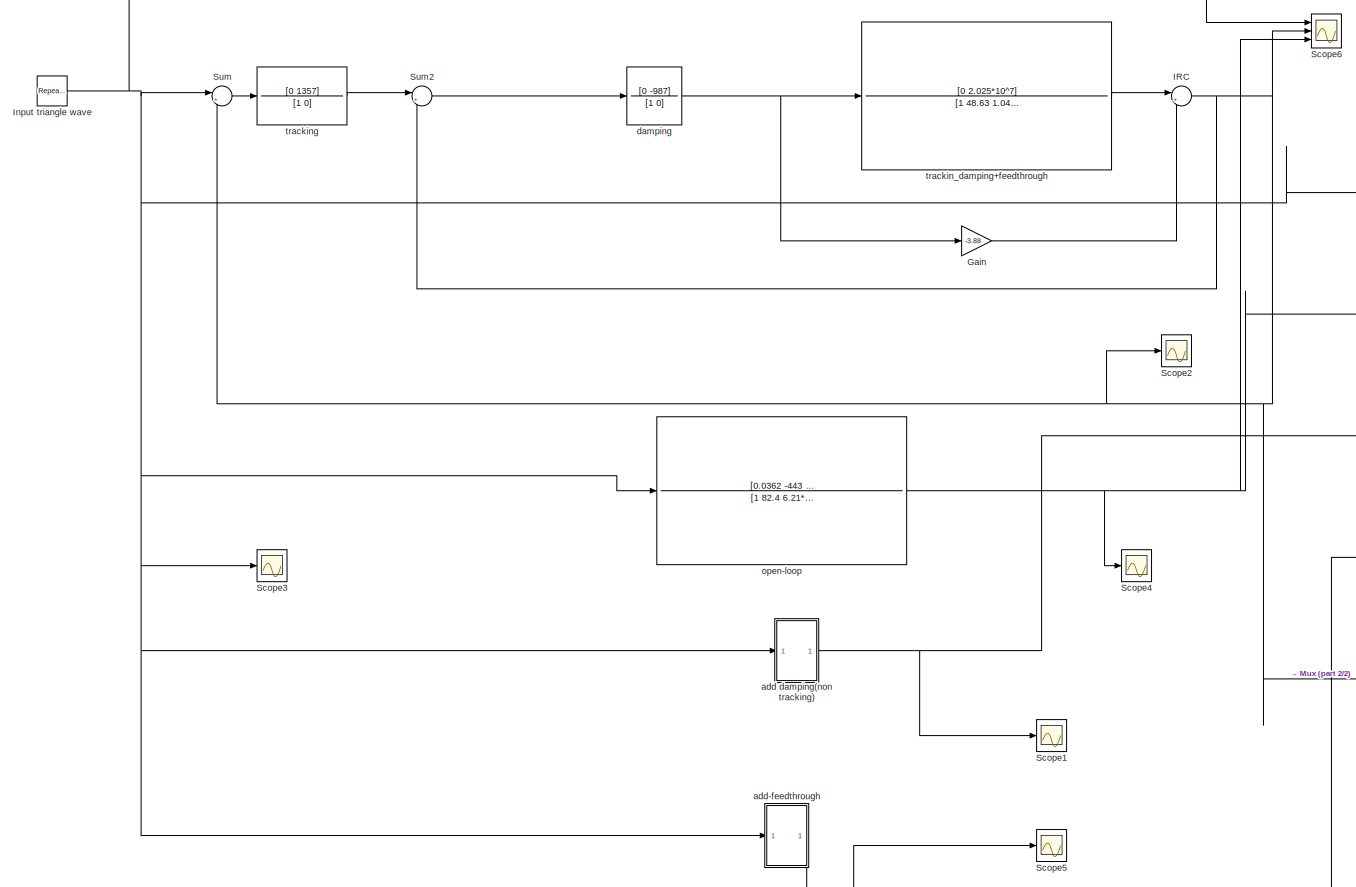
[diagram: root canvas - part 1/2, most of the canvas]
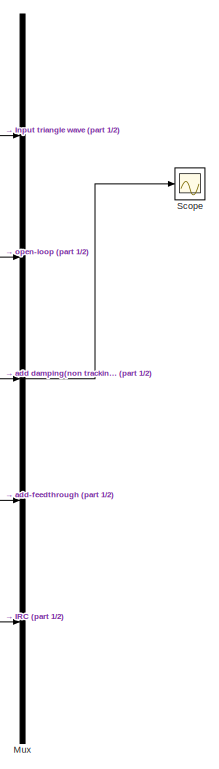
[diagram: root canvas - part 2/2, right side, full height]
MODEL slx_a6b2868882a8
KIND model
CONFIG AbsTol = auto
CONFIG EnableMultiTasking = off
CONFIG FixedStep = auto
CONFIG MaxStep = auto
CONFIG MinStep = auto
CONFIG RelTol = 1e-3
CONFIG SampleTimeConstraint = Unconstrained
CONFIG SolverName = VariableStepAuto
CONFIG StartTime = 0.0
CONFIG StopTime = 0.07
BLOCK [Gain] Gain
  Gain = -3.88
BLOCK [Sum] IRC
  Inputs = |++
  Ports = [2, 1]
BLOCK [Reference] Input triangle wave  REF=simulink/Sources/Repeating
Sequence
  Ports = [0, 1]
  SourceBlock = simulink/Sources/Repeating\nSequence
  SourceProductBaseCode = SL
  SourceType = Repeating table
BLOCK [Mux] Mux
  DisplayOption = bar
  Inputs = 5
  Ports = [5, 1]
BLOCK [Scope] Scope
  Floating = off
  NumInputPorts = 1
  Ports = [1]
  ScopeSpecificationString = Simulink.scopes.TimeScopeBlockCfg('CurrentConfiguration', extmgr.ConfigurationSet(extmgr.Configuration('Core','General UI',true),extmgr.Configuration('Core','Source UI',true),extmgr.Configuration('Sources','WiredSimulink',true),extmgr.Configuration('Visuals','Time Domain',true,'SerializedDisplays',{struct('MinYLimReal','-1.11307','MaxYLimReal','-0.17137','YLabelReal','','MinYLimMag','0.00000','Max...<+1601ch>
BLOCK [Scope] Scope1
  Floating = off
  NumInputPorts = 1
  Ports = [1]
  ScopeSpecificationString = Simulink.scopes.TimeScopeBlockCfg('CurrentConfiguration', extmgr.ConfigurationSet(extmgr.Configuration('Core','General UI',true),extmgr.Configuration('Core','Source UI',true),extmgr.Configuration('Sources','WiredSimulink',true,'DataLoggingVariableName','ScopeData1'),extmgr.Configuration('Visuals','Time Domain',true,'SerializedDisplays',{struct('MinYLimReal','-1.32058','MaxYLimReal','2.32552','YLab...<+1481ch>
BLOCK [Scope] Scope2
  Floating = off
  NumInputPorts = 1
  Ports = [1]
  ScopeSpecificationString = Simulink.scopes.TimeScopeBlockCfg('CurrentConfiguration', extmgr.ConfigurationSet(extmgr.Configuration('Core','General UI',true),extmgr.Configuration('Core','Source UI',true),extmgr.Configuration('Sources','WiredSimulink',true,'DataLoggingVariableName','ScopeData2'),extmgr.Configuration('Visuals','Time Domain',true,'SerializedDisplays',{struct('MinYLimReal','-1.32988','MaxYLimReal','2.33169','YLab...<+1424ch>
BLOCK [Scope] Scope3
  Floating = off
  NumInputPorts = 1
  Ports = [1]
  ScopeSpecificationString = Simulink.scopes.TimeScopeBlockCfg('CurrentConfiguration', extmgr.ConfigurationSet(extmgr.Configuration('Core','General UI',true),extmgr.Configuration('Core','Source UI',true),extmgr.Configuration('Sources','WiredSimulink',true,'DataLoggingVariableName','ScopeData3'),extmgr.Configuration('Visuals','Time Domain',true,'SerializedDisplays',{struct('MinYLimReal','-1.36597','MaxYLimReal','2.34191','YLab...<+1440ch>
BLOCK [Scope] Scope4
  Floating = off
  NumInputPorts = 1
  Ports = [1]
  ScopeSpecificationString = Simulink.scopes.TimeScopeBlockCfg('CurrentConfiguration', extmgr.ConfigurationSet(extmgr.Configuration('Core','General UI',true),extmgr.Configuration('Core','Source UI',true),extmgr.Configuration('Sources','WiredSimulink',true,'DataLoggingVariableName','ScopeData4'),extmgr.Configuration('Visuals','Time Domain',true,'SerializedDisplays',{struct('MinYLimReal','-1.95836','MaxYLimReal','3.37648','YLab...<+1430ch>
BLOCK [Scope] Scope5
  Floating = off
  NumInputPorts = 1
  Ports = [1]
  ScopeSpecificationString = Simulink.scopes.TimeScopeBlockCfg('CurrentConfiguration', extmgr.ConfigurationSet(extmgr.Configuration('Core','General UI',true),extmgr.Configuration('Core','Source UI',true),extmgr.Configuration('Sources','WiredSimulink',true,'DataLoggingVariableName','ScopeData5'),extmgr.Configuration('Visuals','Time Domain',true,'SerializedDisplays',{struct('MinYLimReal','-5.99934','MaxYLimReal','3.50642','YLab...<+1471ch>
BLOCK [Scope] Scope6
  Floating = off
  NumInputPorts = 3
  Ports = [3]
  ScopeSpecificationString = Simulink.scopes.TimeScopeBlockCfg('CurrentConfiguration', extmgr.ConfigurationSet(extmgr.Configuration('Core','General UI',true),extmgr.Configuration('Core','Source UI',true),extmgr.Configuration('Sources','WiredSimulink',true,'DataLoggingVariableName','ScopeData6'),extmgr.Configuration('Visuals','Time Domain',true,'SerializedDisplays',{struct('MinYLimReal','-6.12343','MaxYLimReal','3.8446','YLabe...<+1591ch>
BLOCK [Sum] Sum
  Inputs = |+-
  Ports = [2, 1]
BLOCK [Sum] Sum2
  Inputs = |+-
  Ports = [2, 1]
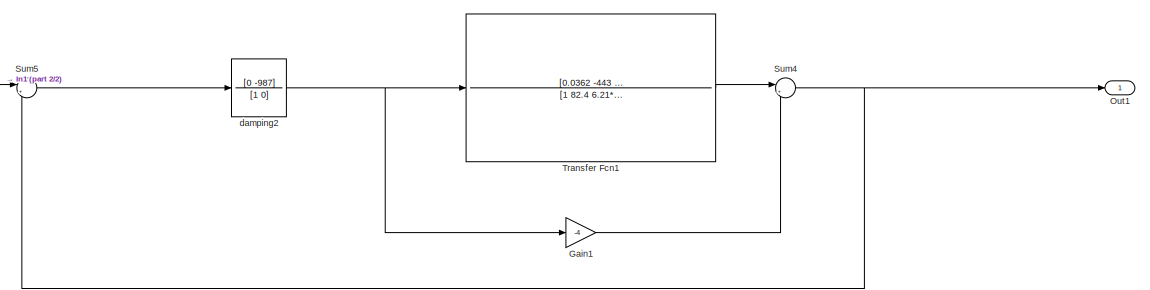
[diagram: add damping(non tracking) - part 1/2, right side, full height]
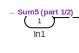
[diagram: add damping(non tracking) - part 2/2, middle left region]
BLOCK [SubSystem] add damping(non tracking)
  Ports = [1, 1]
  RequestExecContextInheritance = off
BLOCK [Gain] add damping(non tracking)/Gain1
  Gain = -4
BLOCK [Inport] add damping(non tracking)/In1
BLOCK [Outport] add damping(non tracking)/Out1
BLOCK [Sum] add damping(non tracking)/Sum4
  Inputs = |++
  Ports = [2, 1]
BLOCK [Sum] add damping(non tracking)/Sum5
  Inputs = |+-
  Ports = [2, 1]
BLOCK [TransferFcn] add damping(non tracking)/Transfer Fcn1
  Denominator = [1 82.4 6.21*10^6]
  Numerator = [0.0362 -443 8.83*10^6]
BLOCK [TransferFcn] add damping(non tracking)/damping2
  Denominator = [1 0]
  Numerator = [0 -987]
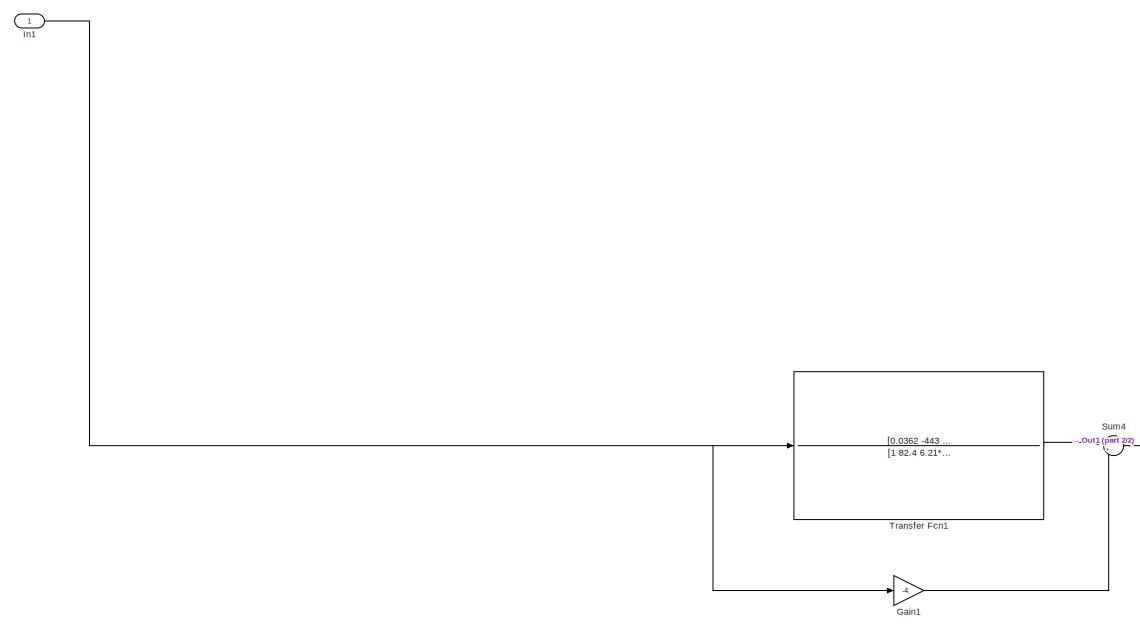
[diagram: add-feedthrough - part 1/2, center side, full height]
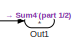
[diagram: add-feedthrough - part 2/2, middle right region]
BLOCK [SubSystem] add-feedthrough
  Ports = [1, 1]
  RequestExecContextInheritance = off
BLOCK [Gain] add-feedthrough/Gain1
  Gain = -4
BLOCK [Inport] add-feedthrough/In1
BLOCK [Outport] add-feedthrough/Out1
BLOCK [Sum] add-feedthrough/Sum4
  Inputs = |++
  Ports = [2, 1]
BLOCK [TransferFcn] add-feedthrough/Transfer Fcn1
  Denominator = [1 82.4 6.21*10^6]
  Numerator = [0.0362 -443 8.83*10^6]
BLOCK [TransferFcn] damping
  Denominator = [1 0]
  Numerator = [0 -987]
BLOCK [TransferFcn] open-loop
  Denominator = [1 82.4 6.21*10^6]
  Numerator = [0.0362 -443 8.83*10^6]
BLOCK [TransferFcn] trackin_damping+feedthrough
  Denominator = [1 48.63 1.042*10^7]
  Numerator = [0 2.025*10^7]
BLOCK [TransferFcn] tracking
  Denominator = [1 0]
  Numerator = [0 1357]
LINE Gain:1 -> IRC:2
NET IRC:1 -> Mux:5, Scope2:1, Scope6:2, Sum2:2, Sum:2
NET Input triangle wave:1 -> Mux:1, Scope3:1, Scope6:1, Sum:1, add damping(non tracking):1, add-feedthrough:1, open-loop:1
LINE Mux:1 -> Scope:1
LINE Sum2:1 -> damping:1
LINE Sum:1 -> tracking:1
LINE add damping(non tracking)/Gain1:1 -> add damping(non tracking)/Sum4:2
LINE add damping(non tracking)/In1:1 -> add damping(non tracking)/Sum5:1
NET add damping(non tracking)/Sum4:1 -> add damping(non tracking)/Out1:1, add damping(non tracking)/Sum5:2
LINE add damping(non tracking)/Sum5:1 -> add damping(non tracking)/damping2:1
LINE add damping(non tracking)/Transfer Fcn1:1 -> add damping(non tracking)/Sum4:1
NET add damping(non tracking)/damping2:1 -> add damping(non tracking)/Gain1:1, add damping(non tracking)/Transfer Fcn1:1
NET add damping(non tracking):1 -> Mux:3, Scope1:1
LINE add-feedthrough/Gain1:1 -> add-feedthrough/Sum4:2
NET add-feedthrough/In1:1 -> add-feedthrough/Gain1:1, add-feedthrough/Transfer Fcn1:1
LINE add-feedthrough/Sum4:1 -> add-feedthrough/Out1:1
LINE add-feedthrough/Transfer Fcn1:1 -> add-feedthrough/Sum4:1
NET add-feedthrough:1 -> Mux:4, Scope5:1
NET damping:1 -> Gain:1, trackin_damping+feedthrough:1
NET open-loop:1 -> Mux:2, Scope4:1, Scope6:3
LINE trackin_damping+feedthrough:1 -> IRC:1
LINE tracking:1 -> Sum2:1
note: NET lines group one-source signal fan-out (src -> all destinations, sorted); 1:1 wires keep LINE
